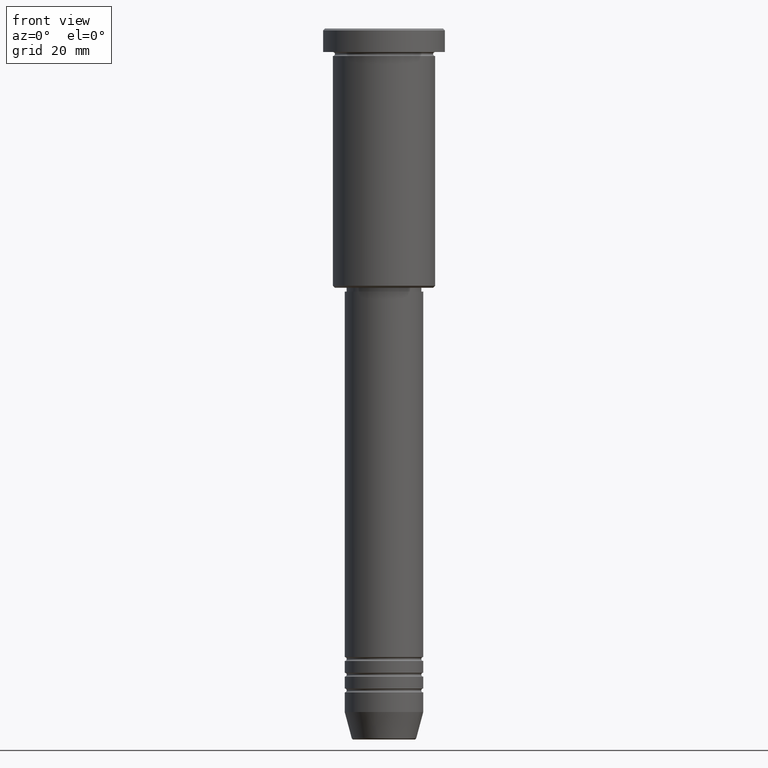
[diagram: clean part render]
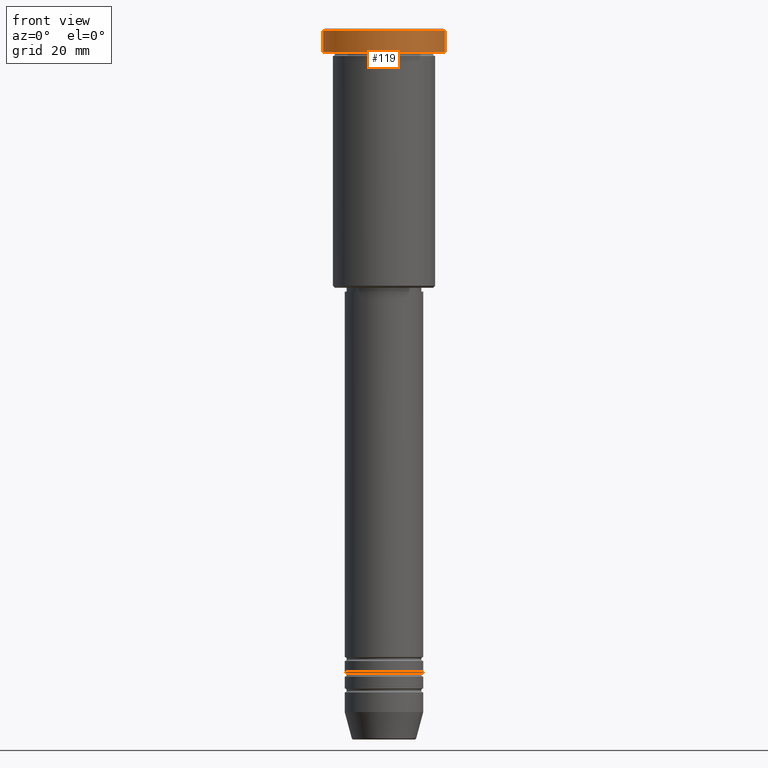
[diagram: same view with one face highlighted and labeled with its STEP entity id]
A machine part, front view. The second image highlights one B-rep face of the part: STEP entity #119.
In plain terms, the highlighted cylindrical surface (partial cylindrical patch) has radius 15.5 mm, axis along (-0, -0, 1).
Its self-contained STEP definition (entity closure, byte-faithful):
#30 = CARTESIAN_POINT ( 'NONE',  ( -15.50000000000000000, 1.898202538678397557E-15, 0.000000000000000000 ) ) ;
#95 = VECTOR ( 'NONE', #147, 1000.000000000000000 ) ;
#119 = ADVANCED_FACE ( 'NONE', ( #844 ), #869, .T. ) ;
#141 = VECTOR ( 'NONE', #414, 1000.000000000000000 ) ;
#147 = DIRECTION ( 'NONE',  ( -0.000000000000000000, -0.000000000000000000, 1.000000000000000000 ) ) ;
#164 = CARTESIAN_POINT ( 'NONE',  ( 15.50000000000000000, 0.000000000000000000, -0.5000000000000125455 ) ) ;
#174 = CARTESIAN_POINT ( 'NONE',  ( -15.50000000000000000, 1.898202538678397557E-15, -0.5000000000000125455 ) ) ;
#224 = ORIENTED_EDGE ( 'NONE', *, *, #1142, .T. ) ;
#258 = DIRECTION ( 'NONE',  ( -0.000000000000000000, -0.000000000000000000, 1.000000000000000000 ) ) ;
#290 = DIRECTION ( 'NONE',  ( 1.000000000000000000, 0.000000000000000000, 0.000000000000000000 ) ) ;
#316 = LINE ( 'NONE', #30, #95 ) ;
#348 = CARTESIAN_POINT ( 'NONE',  ( 0.000000000000000000, 0.000000000000000000, -5.999999999999995559 ) ) ;
#366 = LINE ( 'NONE', #868, #141 ) ;
#387 = CARTESIAN_POINT ( 'NONE',  ( 0.000000000000000000, 0.000000000000000000, 0.000000000000000000 ) ) ;
#397 = ORIENTED_EDGE ( 'NONE', *, *, #530, .F. ) ;
#413 = EDGE_CURVE ( 'NONE', #580, #734, #536, .T. ) ;
#414 = DIRECTION ( 'NONE',  ( -0.000000000000000000, -0.000000000000000000, 1.000000000000000000 ) ) ;
#530 = EDGE_CURVE ( 'NONE', #1128, #734, #316, .T. ) ;
#531 = CARTESIAN_POINT ( 'NONE',  ( -15.50000000000000000, 1.898202538678397557E-15, -5.999999999999995559 ) ) ;
#533 = ORIENTED_EDGE ( 'NONE', *, *, #843, .T. ) ;
#536 = CIRCLE ( 'NONE', #931, 15.50000000000000000 ) ;
#580 = VERTEX_POINT ( 'NONE', #164 ) ;
#734 = VERTEX_POINT ( 'NONE', #174 ) ;
#843 = EDGE_CURVE ( 'NONE', #999, #580, #366, .T. ) ;
#844 = FACE_OUTER_BOUND ( 'NONE', #1150, .T. ) ;
#848 = CARTESIAN_POINT ( 'NONE',  ( 15.50000000000000000, 0.000000000000000000, -5.999999999999995559 ) ) ;
#854 = DIRECTION ( 'NONE',  ( 1.000000000000000000, 0.000000000000000000, 0.000000000000000000 ) ) ;
#868 = CARTESIAN_POINT ( 'NONE',  ( 15.50000000000000000, 0.000000000000000000, 0.000000000000000000 ) ) ;
#869 = CYLINDRICAL_SURFACE ( 'NONE', #1023, 15.50000000000000000 ) ;
#880 = DIRECTION ( 'NONE',  ( 1.000000000000000000, 0.000000000000000000, 0.000000000000000000 ) ) ;
#888 = ORIENTED_EDGE ( 'NONE', *, *, #413, .T. ) ;
#914 = AXIS2_PLACEMENT_3D ( 'NONE', #348, #258, #880 ) ;
#931 = AXIS2_PLACEMENT_3D ( 'NONE', #1094, #1104, #290 ) ;
#999 = VERTEX_POINT ( 'NONE', #848 ) ;
#1023 = AXIS2_PLACEMENT_3D ( 'NONE', #387, #1109, #854 ) ;
#1080 = CIRCLE ( 'NONE', #914, 15.50000000000000000 ) ;
#1094 = CARTESIAN_POINT ( 'NONE',  ( 0.000000000000000000, 0.000000000000000000, -0.5000000000000125455 ) ) ;
#1104 = DIRECTION ( 'NONE',  ( 0.000000000000000000, 0.000000000000000000, -1.000000000000000000 ) ) ;
#1109 = DIRECTION ( 'NONE',  ( -0.000000000000000000, -0.000000000000000000, 1.000000000000000000 ) ) ;
#1128 = VERTEX_POINT ( 'NONE', #531 ) ;
#1142 = EDGE_CURVE ( 'NONE', #1128, #999, #1080, .T. ) ;
#1150 = EDGE_LOOP ( 'NONE', ( #397, #224, #533, #888 ) ) ;